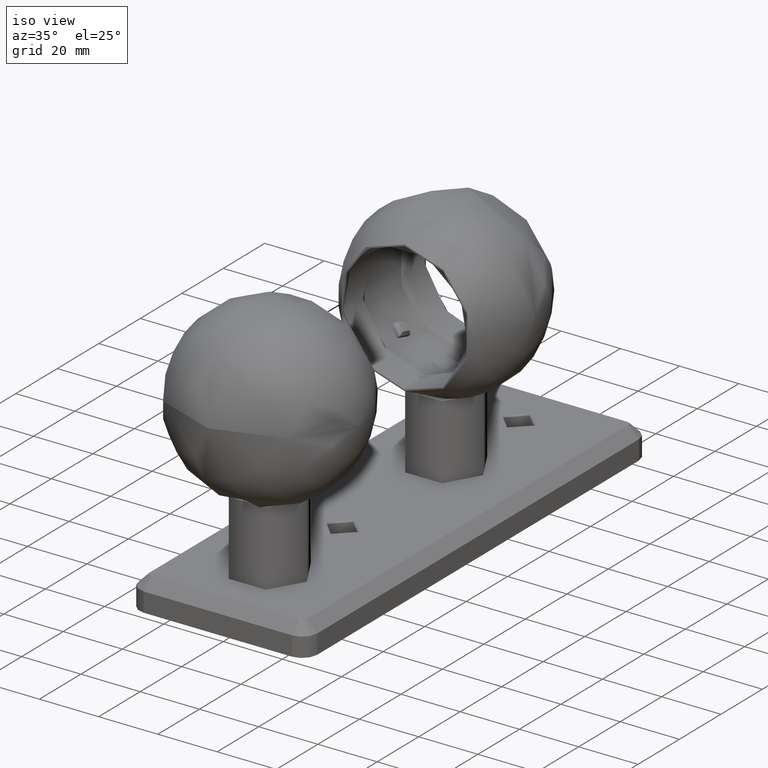
[diagram: clean part render]
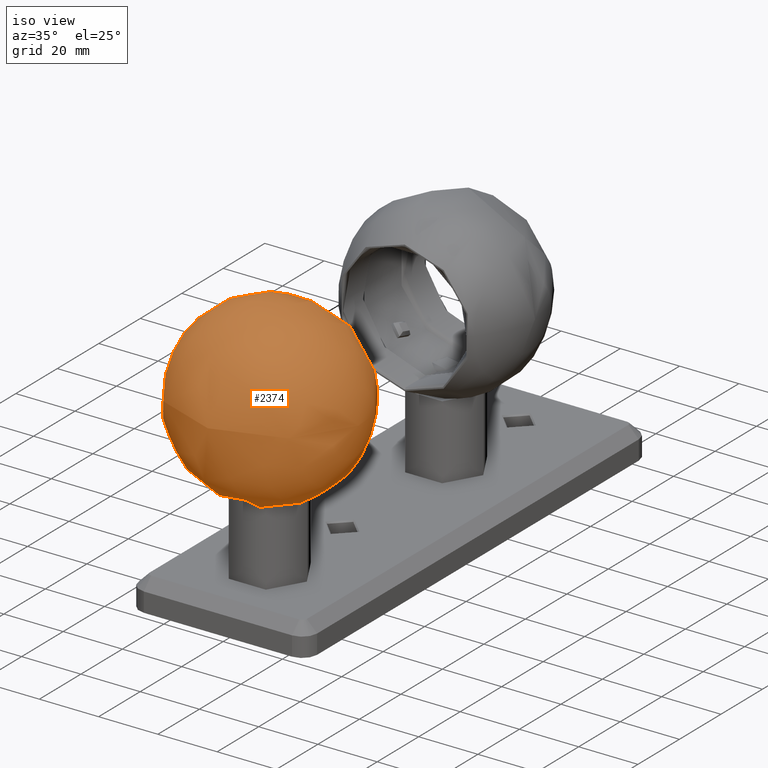
[diagram: same view with one face highlighted and labeled with its STEP entity id]
A machine part, iso view. The second image highlights one B-rep face of the part: STEP entity #2374.
In plain terms, the highlighted spherical surface has radius 30 mm.
Its self-contained STEP definition (entity closure, byte-faithful):
#295 = DIRECTION ( 'NONE',  ( -1.000000000000000000, 3.460521195862510700E-032, -4.167753584235795800E-048 ) ) ;
#1048 = VERTEX_POINT ( 'NONE', #12234 ) ;
#1145 = AXIS2_PLACEMENT_3D ( 'NONE', #1899, #295, #9607 ) ;
#1369 = CARTESIAN_POINT ( 'NONE',  ( 0.0000000000000000000, 6.938893903907228400E-015, 20.00000000000015600 ) ) ;
#1899 = CARTESIAN_POINT ( 'NONE',  ( 0.0000000000000000000, 0.0000000000000000000, 0.0000000000000000000 ) ) ;
#2374 = ADVANCED_FACE ( 'NONE', ( #3409, #19242, #4363 ), #12511, .T. ) ;
#2898 = DIRECTION ( 'NONE',  ( -3.460521195862510700E-032, -1.000000000000000000, 1.551583845779545900E-016 ) ) ;
#3054 = CARTESIAN_POINT ( 'NONE',  ( -7.737960631527435800E-031, -22.36067977499788400, 20.00000000000016000 ) ) ;
#3409 = FACE_BOUND ( 'NONE', #12224, .T. ) ;
#4009 = DIRECTION ( 'NONE',  ( -0.7071067811865531200, -0.7071067811865420200, 2.220445163975808600E-033 ) ) ;
#4363 = FACE_OUTER_BOUND ( 'NONE', #16408, .T. ) ;
#5375 = CARTESIAN_POINT ( 'NONE',  ( 21.13941815660966500, -21.13941815660982100, 0.0000000000000000000 ) ) ;
#5546 = DIRECTION ( 'NONE',  ( 3.460521195862508500E-032, 1.000000000000000000, 9.928051512860343600E-033 ) ) ;
#7323 = EDGE_CURVE ( 'NONE', #9201, #9201, #16974, .T. ) ;
#7448 = AXIS2_PLACEMENT_3D ( 'NONE', #17732, #5546, #8374 ) ;
#8374 = DIRECTION ( 'NONE',  ( 2.833905726505049400E-065, 0.0000000000000000000, 1.000000000000000000 ) ) ;
#9201 = VERTEX_POINT ( 'NONE', #19365 ) ;
#9437 = VERTEX_POINT ( 'NONE', #3054 ) ;
#9607 = DIRECTION ( 'NONE',  ( 3.460521195862510700E-032, 1.000000000000000000, -1.224646799147358900E-016 ) ) ;
#10263 = EDGE_CURVE ( 'NONE', #1048, #1048, #16742, .T. ) ;
#10386 = ORIENTED_EDGE ( 'NONE', *, *, #7323, .T. ) ;
#12224 = EDGE_LOOP ( 'NONE', ( #13588 ) ) ;
#12234 = CARTESIAN_POINT ( 'NONE',  ( 19.37165120364328200, -22.90718510957617900, 5.551112909939523800E-033 ) ) ;
#12254 = AXIS2_PLACEMENT_3D ( 'NONE', #1369, #16830, #2898 ) ;
#12511 = SPHERICAL_SURFACE ( 'NONE', #1145, 30.00000000000000000 ) ;
#12930 = ORIENTED_EDGE ( 'NONE', *, *, #18372, .F. ) ;
#12982 = DIRECTION ( 'NONE',  ( 0.7071067811865450200, -0.7071067811865501300, 2.220445163975502400E-033 ) ) ;
#13272 = CIRCLE ( 'NONE', #12254, 22.36067977499789100 ) ;
#13588 = ORIENTED_EDGE ( 'NONE', *, *, #10263, .F. ) ;
#16408 = EDGE_LOOP ( 'NONE', ( #12930 ) ) ;
#16742 = CIRCLE ( 'NONE', #17986, 2.500000000000000900 ) ;
#16830 = DIRECTION ( 'NONE',  ( 7.016262165877802500E-050, 1.224646799147347300E-016, 1.000000000000000000 ) ) ;
#16974 = CIRCLE ( 'NONE', #7448, 5.113548805140520200 ) ;
#17536 = EDGE_LOOP ( 'NONE', ( #10386 ) ) ;
#17732 = CARTESIAN_POINT ( 'NONE',  ( 0.0000000000000000000, -29.56098135409995800, 0.0000000000000000000 ) ) ;
#17986 = AXIS2_PLACEMENT_3D ( 'NONE', #5375, #12982, #4009 ) ;
#18372 = EDGE_CURVE ( 'NONE', #9437, #9437, #13272, .T. ) ;
#19242 = FACE_BOUND ( 'NONE', #17536, .T. ) ;
#19365 = CARTESIAN_POINT ( 'NONE',  ( 1.449131524165077300E-064, -29.56098135409995800, 5.113548805140520200 ) ) ;